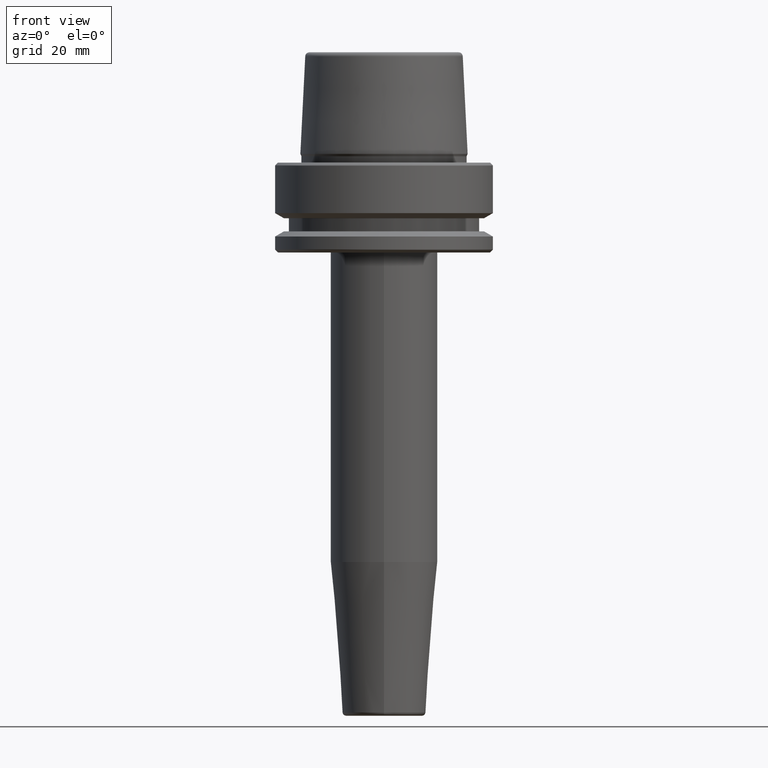
[diagram: clean part render]
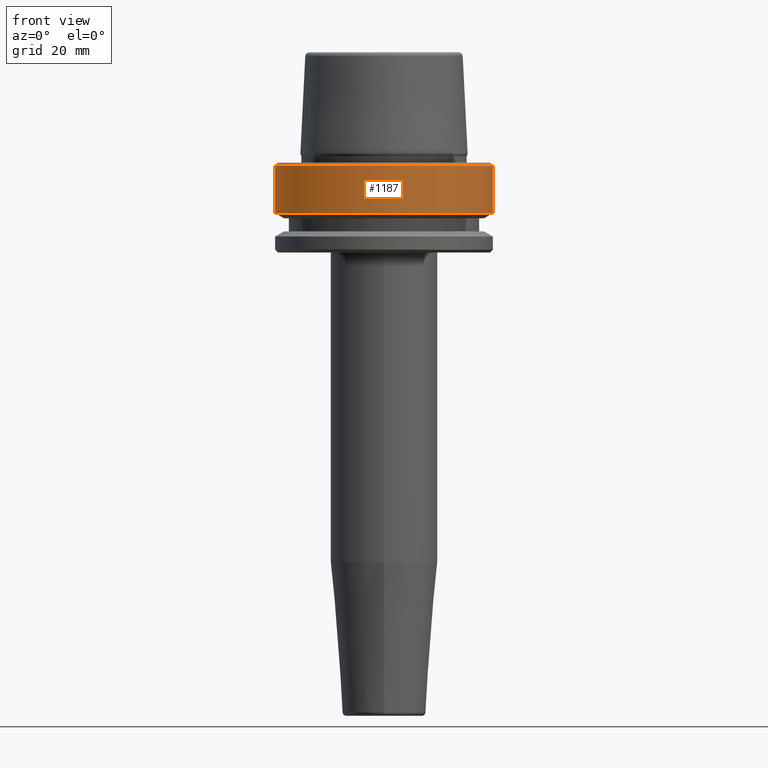
[diagram: same view with one face highlighted and labeled with its STEP entity id]
A machine part, front view. The second image highlights one B-rep face of the part: STEP entity #1187.
In plain terms, the highlighted cylindrical surface (partial cylindrical patch) has radius 31.5 mm, axis along (-0, -0, 1).
Its self-contained STEP definition (entity closure, byte-faithful):
#43 = EDGE_LOOP ( 'NONE', ( #348, #531, #1130, #296 ) ) ;
#95 = CARTESIAN_POINT ( 'NONE',  ( 31.50000000000000000, 0.0000000000000000000, -14.62250092524070100 ) ) ;
#124 = VERTEX_POINT ( 'NONE', #518 ) ;
#163 = LINE ( 'NONE', #400, #1154 ) ;
#168 = AXIS2_PLACEMENT_3D ( 'NONE', #739, #779, #1125 ) ;
#201 = DIRECTION ( 'NONE',  ( -0.0000000000000000000, -0.0000000000000000000, 1.000000000000000000 ) ) ;
#205 = EDGE_CURVE ( 'NONE', #1065, #124, #797, .T. ) ;
#230 = CIRCLE ( 'NONE', #1182, 31.50000000000000000 ) ;
#296 = ORIENTED_EDGE ( 'NONE', *, *, #205, .F. ) ;
#348 = ORIENTED_EDGE ( 'NONE', *, *, #493, .F. ) ;
#400 = CARTESIAN_POINT ( 'NONE',  ( 31.50000000000000000, 0.0000000000000000000, 78.96908074195309300 ) ) ;
#411 = CARTESIAN_POINT ( 'NONE',  ( -31.50000000000000000, 3.857637417314162700E-015, -14.62250092524070100 ) ) ;
#412 = CARTESIAN_POINT ( 'NONE',  ( 0.0000000000000000000, 0.0000000000000000000, -14.62250092524070100 ) ) ;
#425 = CARTESIAN_POINT ( 'NONE',  ( -31.50000000000000000, 3.857637417314162700E-015, -0.9656854249492363700 ) ) ;
#440 = CARTESIAN_POINT ( 'NONE',  ( 0.0000000000000000000, 0.0000000000000000000, -0.9656854249492363700 ) ) ;
#493 = EDGE_CURVE ( 'NONE', #576, #1065, #742, .T. ) ;
#508 = DIRECTION ( 'NONE',  ( 1.000000000000000000, 0.0000000000000000000, 0.0000000000000000000 ) ) ;
#518 = CARTESIAN_POINT ( 'NONE',  ( 31.50000000000000000, 0.0000000000000000000, -0.9656854249492363700 ) ) ;
#530 = DIRECTION ( 'NONE',  ( 1.000000000000000000, 0.0000000000000000000, 0.0000000000000000000 ) ) ;
#531 = ORIENTED_EDGE ( 'NONE', *, *, #905, .T. ) ;
#537 = AXIS2_PLACEMENT_3D ( 'NONE', #440, #1093, #530 ) ;
#576 = VERTEX_POINT ( 'NONE', #411 ) ;
#665 = VECTOR ( 'NONE', #768, 1000.000000000000000 ) ;
#739 = CARTESIAN_POINT ( 'NONE',  ( 0.0000000000000000000, 0.0000000000000000000, 78.96908074195309300 ) ) ;
#742 = LINE ( 'NONE', #998, #665 ) ;
#768 = DIRECTION ( 'NONE',  ( -0.0000000000000000000, -0.0000000000000000000, 1.000000000000000000 ) ) ;
#774 = EDGE_CURVE ( 'NONE', #855, #124, #163, .T. ) ;
#779 = DIRECTION ( 'NONE',  ( -0.0000000000000000000, -0.0000000000000000000, 1.000000000000000000 ) ) ;
#797 = CIRCLE ( 'NONE', #537, 31.50000000000000000 ) ;
#855 = VERTEX_POINT ( 'NONE', #95 ) ;
#905 = EDGE_CURVE ( 'NONE', #576, #855, #230, .T. ) ;
#998 = CARTESIAN_POINT ( 'NONE',  ( -31.50000000000000000, 3.857637417314162700E-015, 78.96908074195309300 ) ) ;
#1065 = VERTEX_POINT ( 'NONE', #425 ) ;
#1070 = DIRECTION ( 'NONE',  ( -0.0000000000000000000, -0.0000000000000000000, 1.000000000000000000 ) ) ;
#1093 = DIRECTION ( 'NONE',  ( -0.0000000000000000000, -0.0000000000000000000, 1.000000000000000000 ) ) ;
#1125 = DIRECTION ( 'NONE',  ( 1.000000000000000000, 0.0000000000000000000, 0.0000000000000000000 ) ) ;
#1130 = ORIENTED_EDGE ( 'NONE', *, *, #774, .T. ) ;
#1154 = VECTOR ( 'NONE', #201, 1000.000000000000000 ) ;
#1182 = AXIS2_PLACEMENT_3D ( 'NONE', #412, #1070, #508 ) ;
#1187 = ADVANCED_FACE ( 'NONE', ( #1229 ), #1207, .T. ) ;
#1207 = CYLINDRICAL_SURFACE ( 'NONE', #168, 31.50000000000000000 ) ;
#1229 = FACE_OUTER_BOUND ( 'NONE', #43, .T. ) ;